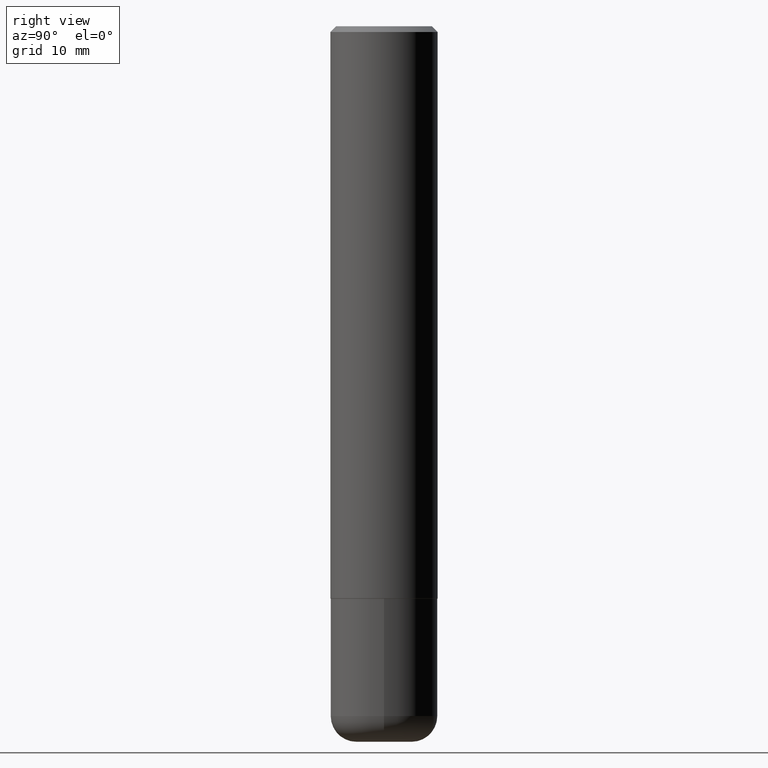
[diagram: clean part render]
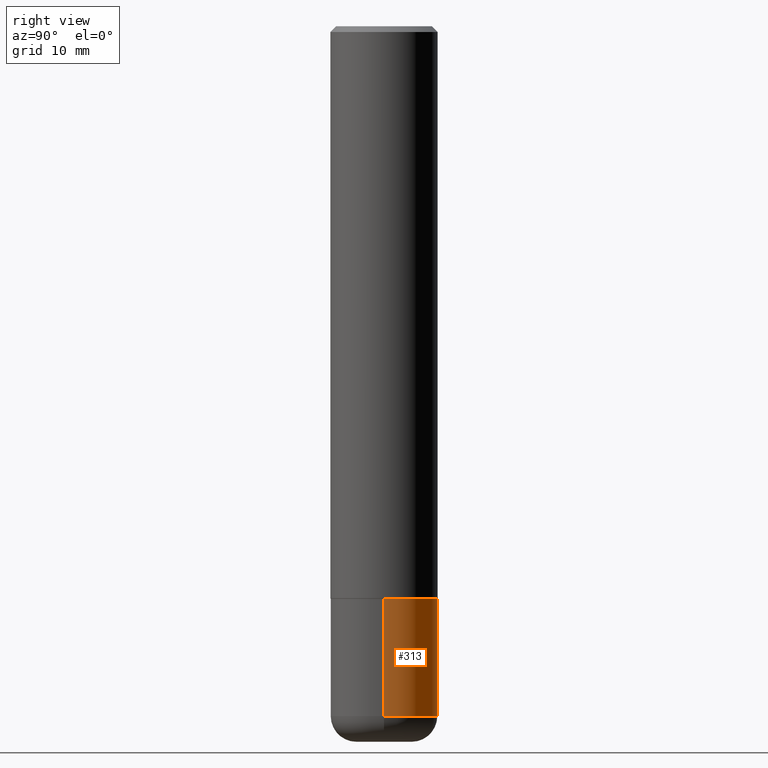
[diagram: same view with one face highlighted and labeled with its STEP entity id]
A machine part, right view. The second image highlights one B-rep face of the part: STEP entity #313.
In plain terms, the highlighted cylindrical surface (partial cylindrical patch) has radius 4.7625 mm, axis along (-0, 0, 1).
Its self-contained STEP definition (entity closure, byte-faithful):
#2 = EDGE_LOOP ( 'NONE', ( #22, #128, #374, #410 ) ) ;
#11 = AXIS2_PLACEMENT_3D ( 'NONE', #102, #327, #169 ) ;
#20 = CIRCLE ( 'NONE', #350, 0.1875000000000000278 ) ;
#22 = ORIENTED_EDGE ( 'NONE', *, *, #253, .T. ) ;
#23 = DIRECTION ( 'NONE',  ( 1.000000000000000000, -6.982962677686265922E-15, 4.876176775795935793E-29 ) ) ;
#54 = LINE ( 'NONE', #303, #215 ) ;
#82 = CIRCLE ( 'NONE', #11, 0.1875000000000000278 ) ;
#102 = CARTESIAN_POINT ( 'NONE',  ( 5.893579822906179826E-29, -8.414470026611981678E-15, -2.410000000000000142 ) ) ;
#113 = DIRECTION ( 'NONE',  ( -2.445468806185136877E-29, 3.491481338843145188E-15, 1.000000000000000000 ) ) ;
#128 = ORIENTED_EDGE ( 'NONE', *, *, #368, .T. ) ;
#131 = CARTESIAN_POINT ( 'NONE',  ( 0.1875000000000000278, -8.292268179752466962E-15, -2.000000000000000000 ) ) ;
#143 = CARTESIAN_POINT ( 'NONE',  ( 0.1874999999999999722, -9.723775528678158264E-15, -2.410000000000000142 ) ) ;
#168 = CYLINDRICAL_SURFACE ( 'NONE', #229, 0.1875000000000000278 ) ;
#169 = DIRECTION ( 'NONE',  ( 1.000000000000000000, -6.982962677686261189E-15, 0.000000000000000000 ) ) ;
#209 = CARTESIAN_POINT ( 'NONE',  ( -0.1875000000000000278, 1.332267629550188046E-15, -9.223003294227947991E-30 ) ) ;
#215 = VECTOR ( 'NONE', #113, 39.37007874015748143 ) ;
#229 = AXIS2_PLACEMENT_3D ( 'NONE', #295, #412, #23 ) ;
#236 = LINE ( 'NONE', #209, #336 ) ;
#240 = CARTESIAN_POINT ( 'NONE',  ( -0.1875000000000000278, -6.366448722598948179E-15, -2.000000000000000000 ) ) ;
#249 = VERTEX_POINT ( 'NONE', #332 ) ;
#253 = EDGE_CURVE ( 'NONE', #389, #249, #82, .T. ) ;
#295 = CARTESIAN_POINT ( 'NONE',  ( 0.000000000000000000, 0.000000000000000000, 0.000000000000000000 ) ) ;
#296 = VERTEX_POINT ( 'NONE', #131 ) ;
#303 = CARTESIAN_POINT ( 'NONE',  ( 0.1875000000000000278, -1.309305502066175008E-15, 9.142831454617381013E-30 ) ) ;
#306 = DIRECTION ( 'NONE',  ( -2.445468806185136597E-29, 3.491481338843145583E-15, 1.000000000000000000 ) ) ;
#313 = ADVANCED_FACE ( 'NONE', ( #325 ), #168, .T. ) ;
#325 = FACE_OUTER_BOUND ( 'NONE', #2, .T. ) ;
#327 = DIRECTION ( 'NONE',  ( -2.445468806185136597E-29, 3.491481338843145583E-15, 1.000000000000000000 ) ) ;
#332 = CARTESIAN_POINT ( 'NONE',  ( -0.1874999999999999722, -7.082202397061793830E-15, -2.410000000000000142 ) ) ;
#336 = VECTOR ( 'NONE', #373, 39.37007874015748143 ) ;
#337 = CARTESIAN_POINT ( 'NONE',  ( 4.890937612370273194E-29, -6.982962677686291165E-15, -2.000000000000000000 ) ) ;
#350 = AXIS2_PLACEMENT_3D ( 'NONE', #337, #306, #372 ) ;
#368 = EDGE_CURVE ( 'NONE', #249, #418, #236, .T. ) ;
#372 = DIRECTION ( 'NONE',  ( 1.000000000000000000, -6.982962677686266711E-15, 0.000000000000000000 ) ) ;
#373 = DIRECTION ( 'NONE',  ( -2.445468806185136877E-29, 3.491481338843145188E-15, 1.000000000000000000 ) ) ;
#374 = ORIENTED_EDGE ( 'NONE', *, *, #413, .F. ) ;
#383 = EDGE_CURVE ( 'NONE', #389, #296, #54, .T. ) ;
#389 = VERTEX_POINT ( 'NONE', #143 ) ;
#410 = ORIENTED_EDGE ( 'NONE', *, *, #383, .F. ) ;
#412 = DIRECTION ( 'NONE',  ( -2.445468806185136597E-29, 3.491481338843145583E-15, 1.000000000000000000 ) ) ;
#413 = EDGE_CURVE ( 'NONE', #296, #418, #20, .T. ) ;
#418 = VERTEX_POINT ( 'NONE', #240 ) ;